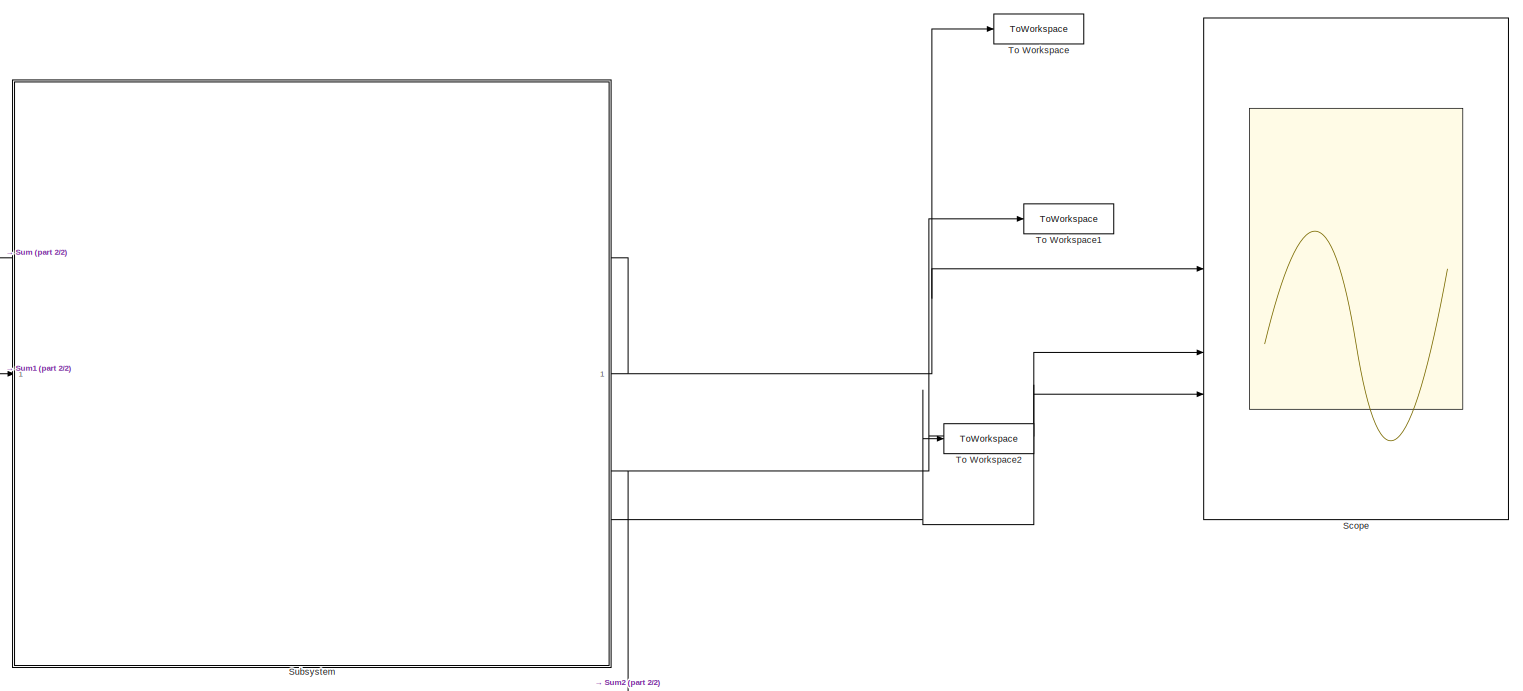
[diagram: root canvas - part 1/2, right side, full height]
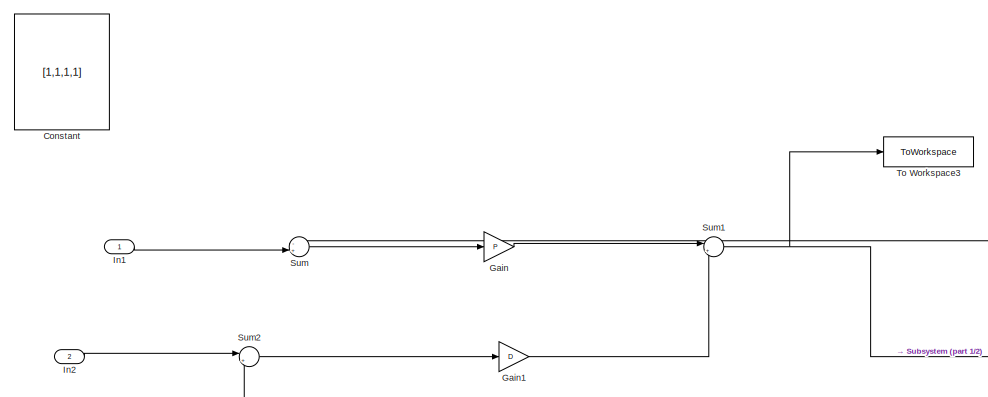
[diagram: root canvas - part 2/2, top left region]
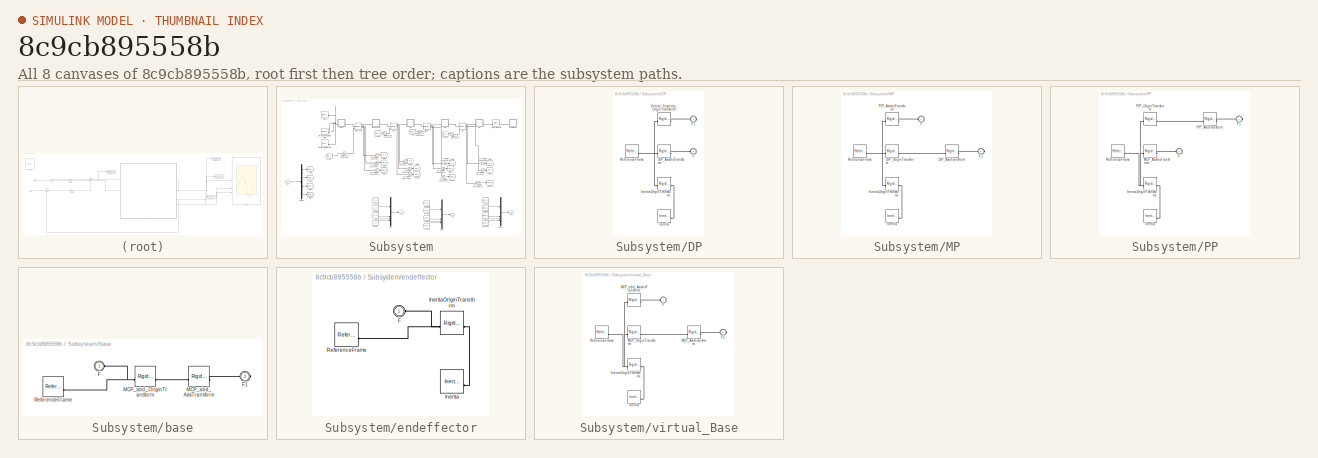
[diagram: thumbnail index - all 8 canvases of the model, root first then tree order]
MODEL slx_8c9cb895558b
KIND model
CONFIG AbsTol = auto
CONFIG EnableMultiTasking = off
CONFIG FixedStep = 1e-3
CONFIG MaxStep = auto
CONFIG MinStep = auto
CONFIG RelTol = 1e-3
CONFIG SampleTimeConstraint = Unconstrained
CONFIG SolverName = ode1
CONFIG StartTime = 0.0
CONFIG StopTime = 5
BLOCK [Constant] Constant
  Commented = on
  Value = [1,1,1,1]
BLOCK [Gain] Gain
  Gain = P
BLOCK [Gain] Gain1
  Gain = D
BLOCK [Inport] In1
  OutDataTypeStr = double
  PortDimensions = 4
BLOCK [Inport] In2
  OutDataTypeStr = double
  Port = 2
  PortDimensions = 4
BLOCK [Scope] Scope
  Floating = off
  NumInputPorts = 3
  ScopeSpecificationString = Simulink.scopes.TimeScopeBlockCfg('CurrentConfiguration', extmgr.ConfigurationSet(extmgr.Configuration('Core','General UI',true),extmgr.Configuration('Core','Source UI',true),extmgr.Configuration('Sources','WiredSimulink',true),extmgr.Configuration('Visuals','Time Domain',true,'SerializedDisplays',{struct('MinYLimReal','-2.49904','MaxYLimReal','3.63032','YLabelReal','','MinYLimMag','0.00000','MaxY...<+2829ch>
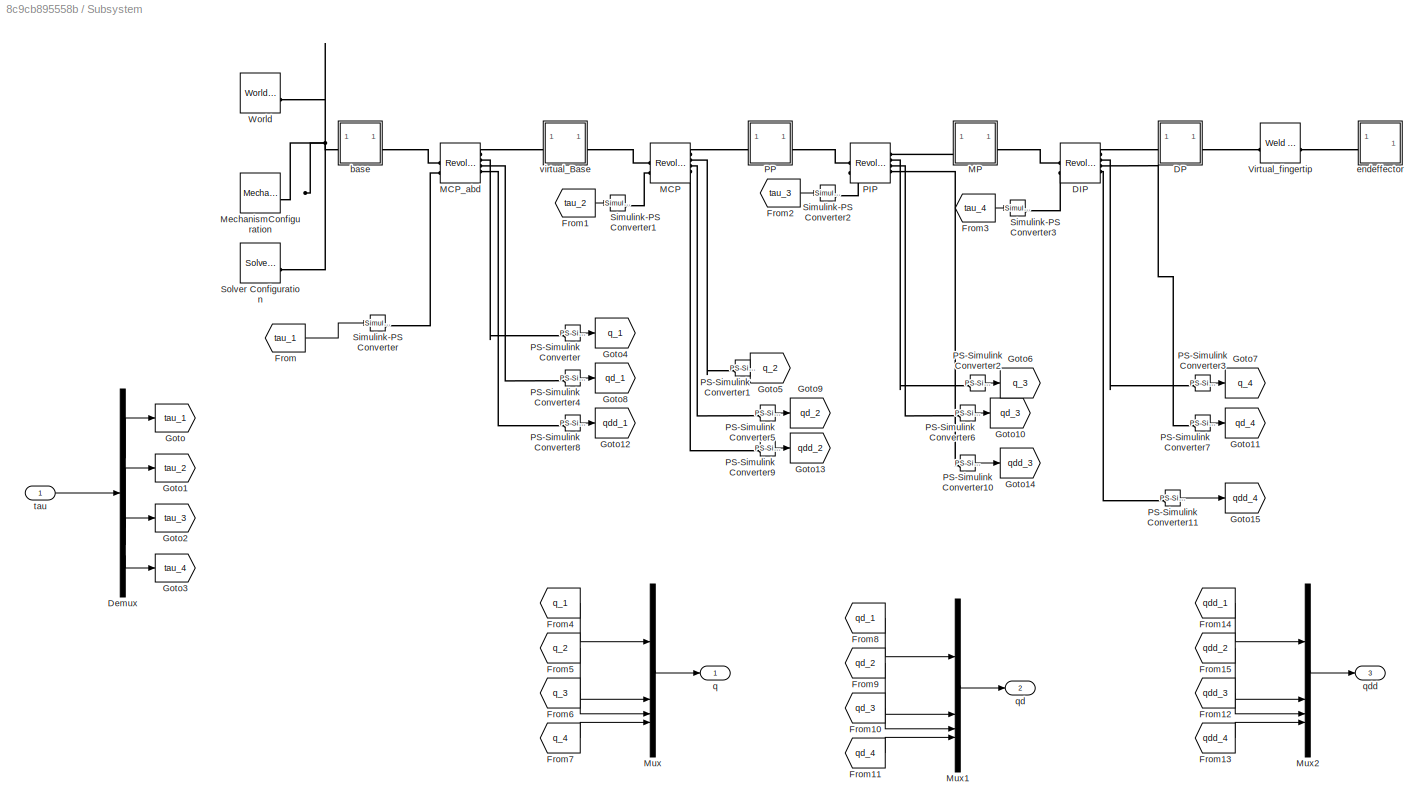
BLOCK [SubSystem] Subsystem
BLOCK [Reference] Subsystem/DIP  REF=sm_lib/Joints/Revolute Joint
  SourceBlock = sm_lib/Joints/Revolute Joint
  SourceType = Revolute Joint
BLOCK [SubSystem] Subsystem/DP
BLOCK [Reference] Subsystem/DP/DIP_AxisInvTransform  REF=sm_lib/Frames and
Transforms/Rigid
Transform
  SourceBlock = sm_lib/Frames and\nTransforms/Rigid\nTransform
  SourceType = Rigid\nTransform
BLOCK [PMIOPort] Subsystem/DP/F
  Side = Left
BLOCK [PMIOPort] Subsystem/DP/F1
  Port = 2
  Side = Right
BLOCK [Reference] Subsystem/DP/Inertia  REF=sm_lib/Body Elements/Inertia
  SourceBlock = sm_lib/Body Elements/Inertia
  SourceType = Inertia
BLOCK [Reference] Subsystem/DP/InertiaOriginTransform  REF=sm_lib/Frames and
Transforms/Rigid
Transform
  SourceBlock = sm_lib/Frames and\nTransforms/Rigid\nTransform
  SourceType = Rigid\nTransform
BLOCK [Reference] Subsystem/DP/ReferenceFrame  REF=sm_lib/Frames and
Transforms/Reference
Frame
  SourceBlock = sm_lib/Frames and\nTransforms/Reference\nFrame
  SourceType = Reference\nFrame
BLOCK [Reference] Subsystem/DP/Virtual_fingertip_OriginTransform  REF=sm_lib/Frames and
Transforms/Rigid
Transform
  SourceBlock = sm_lib/Frames and\nTransforms/Rigid\nTransform
  SourceType = Rigid\nTransform
BLOCK [Demux] Subsystem/Demux
BLOCK [From] Subsystem/From
  GotoTag = tau_1
BLOCK [From] Subsystem/From1
  GotoTag = tau_2
BLOCK [From] Subsystem/From10
  GotoTag = qd_3
BLOCK [From] Subsystem/From11
  GotoTag = qd_4
BLOCK [From] Subsystem/From12
  GotoTag = qdd_3
BLOCK [From] Subsystem/From13
  GotoTag = qdd_4
BLOCK [From] Subsystem/From14
  GotoTag = qdd_1
BLOCK [From] Subsystem/From15
  GotoTag = qdd_2
BLOCK [From] Subsystem/From2
  GotoTag = tau_3
BLOCK [From] Subsystem/From3
  GotoTag = tau_4
BLOCK [From] Subsystem/From4
  GotoTag = q_1
BLOCK [From] Subsystem/From5
  GotoTag = q_2
BLOCK [From] Subsystem/From6
  GotoTag = q_3
BLOCK [From] Subsystem/From7
  GotoTag = q_4
BLOCK [From] Subsystem/From8
  GotoTag = qd_1
BLOCK [From] Subsystem/From9
  GotoTag = qd_2
BLOCK [Goto] Subsystem/Goto
  GotoTag = tau_1
BLOCK [Goto] Subsystem/Goto1
  GotoTag = tau_2
BLOCK [Goto] Subsystem/Goto10
  GotoTag = qd_3
BLOCK [Goto] Subsystem/Goto11
  GotoTag = qd_4
BLOCK [Goto] Subsystem/Goto12
  GotoTag = qdd_1
BLOCK [Goto] Subsystem/Goto13
  GotoTag = qdd_2
BLOCK [Goto] Subsystem/Goto14
  GotoTag = qdd_3
BLOCK [Goto] Subsystem/Goto15
  GotoTag = qdd_4
BLOCK [Goto] Subsystem/Goto2
  GotoTag = tau_3
BLOCK [Goto] Subsystem/Goto3
  GotoTag = tau_4
BLOCK [Goto] Subsystem/Goto4
  GotoTag = q_1
BLOCK [Goto] Subsystem/Goto5
  GotoTag = q_2
BLOCK [Goto] Subsystem/Goto6
  GotoTag = q_3
BLOCK [Goto] Subsystem/Goto7
  GotoTag = q_4
BLOCK [Goto] Subsystem/Goto8
  GotoTag = qd_1
BLOCK [Goto] Subsystem/Goto9
  GotoTag = qd_2
BLOCK [Reference] Subsystem/MCP  REF=sm_lib/Joints/Revolute Joint
  SourceBlock = sm_lib/Joints/Revolute Joint
  SourceType = Revolute Joint
BLOCK [Reference] Subsystem/MCP_abd  REF=sm_lib/Joints/Revolute Joint
  SourceBlock = sm_lib/Joints/Revolute Joint
  SourceType = Revolute Joint
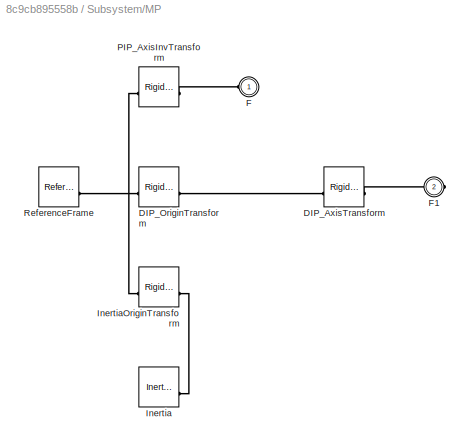
BLOCK [SubSystem] Subsystem/MP
BLOCK [Reference] Subsystem/MP/DIP_AxisTransform  REF=sm_lib/Frames and
Transforms/Rigid
Transform
  SourceBlock = sm_lib/Frames and\nTransforms/Rigid\nTransform
  SourceType = Rigid\nTransform
BLOCK [Reference] Subsystem/MP/DIP_OriginTransform  REF=sm_lib/Frames and
Transforms/Rigid
Transform
  SourceBlock = sm_lib/Frames and\nTransforms/Rigid\nTransform
  SourceType = Rigid\nTransform
BLOCK [PMIOPort] Subsystem/MP/F
  Side = Left
BLOCK [PMIOPort] Subsystem/MP/F1
  Port = 2
  Side = Right
BLOCK [Reference] Subsystem/MP/Inertia  REF=sm_lib/Body Elements/Inertia
  SourceBlock = sm_lib/Body Elements/Inertia
  SourceType = Inertia
BLOCK [Reference] Subsystem/MP/InertiaOriginTransform  REF=sm_lib/Frames and
Transforms/Rigid
Transform
  SourceBlock = sm_lib/Frames and\nTransforms/Rigid\nTransform
  SourceType = Rigid\nTransform
BLOCK [Reference] Subsystem/MP/PIP_AxisInvTransform  REF=sm_lib/Frames and
Transforms/Rigid
Transform
  SourceBlock = sm_lib/Frames and\nTransforms/Rigid\nTransform
  SourceType = Rigid\nTransform
BLOCK [Reference] Subsystem/MP/ReferenceFrame  REF=sm_lib/Frames and
Transforms/Reference
Frame
  SourceBlock = sm_lib/Frames and\nTransforms/Reference\nFrame
  SourceType = Reference\nFrame
BLOCK [Reference] Subsystem/MechanismConfiguration  REF=sm_lib/Utilities/Mechanism
Configuration
  SourceBlock = sm_lib/Utilities/Mechanism\nConfiguration
  SourceType = Mechanism\nConfiguration
BLOCK [Mux] Subsystem/Mux
  DisplayOption = bar
BLOCK [Mux] Subsystem/Mux1
  DisplayOption = bar
BLOCK [Mux] Subsystem/Mux2
  DisplayOption = bar
BLOCK [Reference] Subsystem/PIP  REF=sm_lib/Joints/Revolute Joint
  SourceBlock = sm_lib/Joints/Revolute Joint
  SourceType = Revolute Joint
BLOCK [SubSystem] Subsystem/PP
BLOCK [PMIOPort] Subsystem/PP/F
  Side = Left
BLOCK [PMIOPort] Subsystem/PP/F1
  Port = 2
  Side = Right
BLOCK [Reference] Subsystem/PP/Inertia  REF=sm_lib/Body Elements/Inertia
  SourceBlock = sm_lib/Body Elements/Inertia
  SourceType = Inertia
BLOCK [Reference] Subsystem/PP/InertiaOriginTransform  REF=sm_lib/Frames and
Transforms/Rigid
Transform
  SourceBlock = sm_lib/Frames and\nTransforms/Rigid\nTransform
  SourceType = Rigid\nTransform
BLOCK [Reference] Subsystem/PP/MCP_AxisInvTransform  REF=sm_lib/Frames and
Transforms/Rigid
Transform
  SourceBlock = sm_lib/Frames and\nTransforms/Rigid\nTransform
  SourceType = Rigid\nTransform
BLOCK [Reference] Subsystem/PP/PIP_AxisTransform  REF=sm_lib/Frames and
Transforms/Rigid
Transform
  SourceBlock = sm_lib/Frames and\nTransforms/Rigid\nTransform
  SourceType = Rigid\nTransform
BLOCK [Reference] Subsystem/PP/PIP_OriginTransform  REF=sm_lib/Frames and
Transforms/Rigid
Transform
  SourceBlock = sm_lib/Frames and\nTransforms/Rigid\nTransform
  SourceType = Rigid\nTransform
BLOCK [Reference] Subsystem/PP/ReferenceFrame  REF=sm_lib/Frames and
Transforms/Reference
Frame
  SourceBlock = sm_lib/Frames and\nTransforms/Reference\nFrame
  SourceType = Reference\nFrame
BLOCK [Reference] Subsystem/PS-Simulink Converter  REF=nesl_utility/PS-Simulink
Converter
  SourceBlock = nesl_utility/PS-Simulink\nConverter
  SourceType = PS-Simulink\nConverter
BLOCK [Reference] Subsystem/PS-Simulink Converter1  REF=nesl_utility/PS-Simulink
Converter
  SourceBlock = nesl_utility/PS-Simulink\nConverter
  SourceType = PS-Simulink\nConverter
BLOCK [Reference] Subsystem/PS-Simulink Converter10  REF=nesl_utility/PS-Simulink
Converter
  SourceBlock = nesl_utility/PS-Simulink\nConverter
  SourceType = PS-Simulink\nConverter
BLOCK [Reference] Subsystem/PS-Simulink Converter11  REF=nesl_utility/PS-Simulink
Converter
  SourceBlock = nesl_utility/PS-Simulink\nConverter
  SourceType = PS-Simulink\nConverter
BLOCK [Reference] Subsystem/PS-Simulink Converter2  REF=nesl_utility/PS-Simulink
Converter
  SourceBlock = nesl_utility/PS-Simulink\nConverter
  SourceType = PS-Simulink\nConverter
BLOCK [Reference] Subsystem/PS-Simulink Converter3  REF=nesl_utility/PS-Simulink
Converter
  SourceBlock = nesl_utility/PS-Simulink\nConverter
  SourceType = PS-Simulink\nConverter
BLOCK [Reference] Subsystem/PS-Simulink Converter4  REF=nesl_utility/PS-Simulink
Converter
  SourceBlock = nesl_utility/PS-Simulink\nConverter
  SourceType = PS-Simulink\nConverter
BLOCK [Reference] Subsystem/PS-Simulink Converter5  REF=nesl_utility/PS-Simulink
Converter
  SourceBlock = nesl_utility/PS-Simulink\nConverter
  SourceType = PS-Simulink\nConverter
BLOCK [Reference] Subsystem/PS-Simulink Converter6  REF=nesl_utility/PS-Simulink
Converter
  SourceBlock = nesl_utility/PS-Simulink\nConverter
  SourceType = PS-Simulink\nConverter
BLOCK [Reference] Subsystem/PS-Simulink Converter7  REF=nesl_utility/PS-Simulink
Converter
  SourceBlock = nesl_utility/PS-Simulink\nConverter
  SourceType = PS-Simulink\nConverter
BLOCK [Reference] Subsystem/PS-Simulink Converter8  REF=nesl_utility/PS-Simulink
Converter
  SourceBlock = nesl_utility/PS-Simulink\nConverter
  SourceType = PS-Simulink\nConverter
BLOCK [Reference] Subsystem/PS-Simulink Converter9  REF=nesl_utility/PS-Simulink
Converter
  SourceBlock = nesl_utility/PS-Simulink\nConverter
  SourceType = PS-Simulink\nConverter
BLOCK [Reference] Subsystem/Simulink-PS Converter  REF=nesl_utility/Simulink-PS
Converter
  SourceBlock = nesl_utility/Simulink-PS\nConverter
  SourceType = Simulink-PS\nConverter
BLOCK [Reference] Subsystem/Simulink-PS Converter1  REF=nesl_utility/Simulink-PS
Converter
  SourceBlock = nesl_utility/Simulink-PS\nConverter
  SourceType = Simulink-PS\nConverter
BLOCK [Reference] Subsystem/Simulink-PS Converter2  REF=nesl_utility/Simulink-PS
Converter
  SourceBlock = nesl_utility/Simulink-PS\nConverter
  SourceType = Simulink-PS\nConverter
BLOCK [Reference] Subsystem/Simulink-PS Converter3  REF=nesl_utility/Simulink-PS
Converter
  SourceBlock = nesl_utility/Simulink-PS\nConverter
  SourceType = Simulink-PS\nConverter
BLOCK [Reference] Subsystem/Solver Configuration  REF=nesl_utility/Solver
Configuration
  SourceBlock = nesl_utility/Solver\nConfiguration
  SourceType = Solver\nConfiguration
BLOCK [Reference] Subsystem/Virtual_fingertip  REF=sm_lib/Joints/Weld Joint
  SourceBlock = sm_lib/Joints/Weld Joint
  SourceType = Weld Joint
BLOCK [Reference] Subsystem/World  REF=sm_lib/Frames and
Transforms/World Frame
  SourceBlock = sm_lib/Frames and\nTransforms/World Frame
  SourceType = World Frame
BLOCK [SubSystem] Subsystem/base
BLOCK [PMIOPort] Subsystem/base/F
  Side = Left
BLOCK [PMIOPort] Subsystem/base/F1
  Port = 2
  Side = Right
BLOCK [Reference] Subsystem/base/MCP_abd_AxisTransform  REF=sm_lib/Frames and
Transforms/Rigid
Transform
  SourceBlock = sm_lib/Frames and\nTransforms/Rigid\nTransform
  SourceType = Rigid\nTransform
BLOCK [Reference] Subsystem/base/MCP_abd_OriginTransform  REF=sm_lib/Frames and
Transforms/Rigid
Transform
  SourceBlock = sm_lib/Frames and\nTransforms/Rigid\nTransform
  SourceType = Rigid\nTransform
BLOCK [Reference] Subsystem/base/ReferenceFrame  REF=sm_lib/Frames and
Transforms/Reference
Frame
  SourceBlock = sm_lib/Frames and\nTransforms/Reference\nFrame
  SourceType = Reference\nFrame
BLOCK [SubSystem] Subsystem/endeffector
BLOCK [PMIOPort] Subsystem/endeffector/F
  Side = Left
BLOCK [Reference] Subsystem/endeffector/Inertia  REF=sm_lib/Body Elements/Inertia
  SourceBlock = sm_lib/Body Elements/Inertia
  SourceType = Inertia
BLOCK [Reference] Subsystem/endeffector/InertiaOriginTransform  REF=sm_lib/Frames and
Transforms/Rigid
Transform
  SourceBlock = sm_lib/Frames and\nTransforms/Rigid\nTransform
  SourceType = Rigid\nTransform
BLOCK [Reference] Subsystem/endeffector/ReferenceFrame  REF=sm_lib/Frames and
Transforms/Reference
Frame
  SourceBlock = sm_lib/Frames and\nTransforms/Reference\nFrame
  SourceType = Reference\nFrame
BLOCK [Outport] Subsystem/q
BLOCK [Outport] Subsystem/qd
  Port = 2
BLOCK [Outport] Subsystem/qdd
  Port = 3
BLOCK [Inport] Subsystem/tau
BLOCK [SubSystem] Subsystem/virtual_Base
BLOCK [PMIOPort] Subsystem/virtual_Base/F
  Side = Left
BLOCK [PMIOPort] Subsystem/virtual_Base/F1
  Port = 2
  Side = Right
BLOCK [Reference] Subsystem/virtual_Base/Inertia  REF=sm_lib/Body Elements/Inertia
  SourceBlock = sm_lib/Body Elements/Inertia
  SourceType = Inertia
BLOCK [Reference] Subsystem/virtual_Base/InertiaOriginTransform  REF=sm_lib/Frames and
Transforms/Rigid
Transform
  SourceBlock = sm_lib/Frames and\nTransforms/Rigid\nTransform
  SourceType = Rigid\nTransform
BLOCK [Reference] Subsystem/virtual_Base/MCP_AxisTransform  REF=sm_lib/Frames and
Transforms/Rigid
Transform
  SourceBlock = sm_lib/Frames and\nTransforms/Rigid\nTransform
  SourceType = Rigid\nTransform
BLOCK [Reference] Subsystem/virtual_Base/MCP_OriginTransform  REF=sm_lib/Frames and
Transforms/Rigid
Transform
  SourceBlock = sm_lib/Frames and\nTransforms/Rigid\nTransform
  SourceType = Rigid\nTransform
BLOCK [Reference] Subsystem/virtual_Base/MCP_abd_AxisInvTransform  REF=sm_lib/Frames and
Transforms/Rigid
Transform
  SourceBlock = sm_lib/Frames and\nTransforms/Rigid\nTransform
  SourceType = Rigid\nTransform
BLOCK [Reference] Subsystem/virtual_Base/ReferenceFrame  REF=sm_lib/Frames and
Transforms/Reference
Frame
  SourceBlock = sm_lib/Frames and\nTransforms/Reference\nFrame
  SourceType = Reference\nFrame
BLOCK [Sum] Sum
  Inputs = -+|
BLOCK [Sum] Sum1
  Inputs = |++
BLOCK [Sum] Sum2
  Inputs = |+-
BLOCK [ToWorkspace] To Workspace
  FixptAsFi = on
  MaxDataPoints = inf
  SampleTime = 1e-3
  SaveFormat = Structure With Time
  VariableName = q_out
BLOCK [ToWorkspace] To Workspace1
  FixptAsFi = on
  MaxDataPoints = inf
  SampleTime = 1e-3
  SaveFormat = Structure With Time
  VariableName = qd_out
BLOCK [ToWorkspace] To Workspace2
  FixptAsFi = on
  MaxDataPoints = inf
  SampleTime = 1e-3
  SaveFormat = Structure With Time
  VariableName = qdd_out
BLOCK [ToWorkspace] To Workspace3
  FixptAsFi = on
  MaxDataPoints = inf
  SampleTime = 1e-3
  SaveFormat = Structure With Time
  VariableName = tau
LINE Gain1:1 -> Sum1:2
LINE Gain:1 -> Sum1:1
LINE In1:1 -> Sum:2
LINE In2:1 -> Sum2:1
LINE Subsystem/Demux:1 -> Subsystem/Goto:1
LINE Subsystem/Demux:2 -> Subsystem/Goto1:1
LINE Subsystem/Demux:3 -> Subsystem/Goto2:1
LINE Subsystem/Demux:4 -> Subsystem/Goto3:1
LINE Subsystem/From10:1 -> Subsystem/Mux1:3
LINE Subsystem/From11:1 -> Subsystem/Mux1:4
LINE Subsystem/From12:1 -> Subsystem/Mux2:3
LINE Subsystem/From13:1 -> Subsystem/Mux2:4
LINE Subsystem/From14:1 -> Subsystem/Mux2:1
LINE Subsystem/From15:1 -> Subsystem/Mux2:2
LINE Subsystem/From1:1 -> Subsystem/Simulink-PS Converter1:1
LINE Subsystem/From2:1 -> Subsystem/Simulink-PS Converter2:1
LINE Subsystem/From3:1 -> Subsystem/Simulink-PS Converter3:1
LINE Subsystem/From4:1 -> Subsystem/Mux:1
LINE Subsystem/From5:1 -> Subsystem/Mux:2
LINE Subsystem/From6:1 -> Subsystem/Mux:3
LINE Subsystem/From7:1 -> Subsystem/Mux:4
LINE Subsystem/From8:1 -> Subsystem/Mux1:1
LINE Subsystem/From9:1 -> Subsystem/Mux1:2
LINE Subsystem/From:1 -> Subsystem/Simulink-PS Converter:1
LINE Subsystem/Mux1:1 -> Subsystem/qd:1
LINE Subsystem/Mux2:1 -> Subsystem/qdd:1
LINE Subsystem/Mux:1 -> Subsystem/q:1
LINE Subsystem/PS-Simulink Converter10:1 -> Subsystem/Goto14:1
LINE Subsystem/PS-Simulink Converter11:1 -> Subsystem/Goto15:1
LINE Subsystem/PS-Simulink Converter1:1 -> Subsystem/Goto5:1
LINE Subsystem/PS-Simulink Converter2:1 -> Subsystem/Goto6:1
LINE Subsystem/PS-Simulink Converter3:1 -> Subsystem/Goto7:1
LINE Subsystem/PS-Simulink Converter4:1 -> Subsystem/Goto8:1
LINE Subsystem/PS-Simulink Converter5:1 -> Subsystem/Goto9:1
LINE Subsystem/PS-Simulink Converter6:1 -> Subsystem/Goto10:1
LINE Subsystem/PS-Simulink Converter7:1 -> Subsystem/Goto11:1
LINE Subsystem/PS-Simulink Converter8:1 -> Subsystem/Goto12:1
LINE Subsystem/PS-Simulink Converter9:1 -> Subsystem/Goto13:1
LINE Subsystem/PS-Simulink Converter:1 -> Subsystem/Goto4:1
LINE Subsystem/tau:1 -> Subsystem/Demux:1
NET Subsystem:1 -> Scope:1, Sum:1, To Workspace:1
NET Subsystem:2 -> Scope:2, Sum2:2, To Workspace1:1
NET Subsystem:3 -> Scope:3, To Workspace2:1
NET Sum1:1 -> Subsystem:1, To Workspace3:1
LINE Sum2:1 -> Gain1:1
LINE Sum:1 -> Gain:1
PLINE Subsystem/DIP:LConn1 -- Subsystem/MP:RConn1
PLINE Subsystem/DIP:LConn2 -- Subsystem/Simulink-PS Converter3:RConn1
PLINE Subsystem/DIP:RConn1 -- Subsystem/DP:LConn1
PLINE Subsystem/DIP:RConn2 -- Subsystem/PS-Simulink Converter3:LConn1
PLINE Subsystem/DIP:RConn3 -- Subsystem/PS-Simulink Converter7:LConn1
PLINE Subsystem/DIP:RConn4 -- Subsystem/PS-Simulink Converter11:LConn1
PNET net1: Subsystem/DP/DIP_AxisInvTransform:LConn1 -- Subsystem/DP/InertiaOriginTransform:LConn1 -- Subsystem/DP/ReferenceFrame:RConn1 -- Subsystem/DP/Virtual_fingertip_OriginTransform:LConn1
PLINE Subsystem/DP/DIP_AxisInvTransform:RConn1 -- Subsystem/DP/F:RConn1
PLINE Subsystem/DP/F1:RConn1 -- Subsystem/DP/Virtual_fingertip_OriginTransform:RConn1
PLINE Subsystem/DP/Inertia:RConn1 -- Subsystem/DP/InertiaOriginTransform:RConn1
PLINE Subsystem/DP:RConn1 -- Subsystem/Virtual_fingertip:LConn1
PLINE Subsystem/MCP:LConn1 -- Subsystem/virtual_Base:RConn1
PLINE Subsystem/MCP:LConn2 -- Subsystem/Simulink-PS Converter1:RConn1
PLINE Subsystem/MCP:RConn1 -- Subsystem/PP:LConn1
PLINE Subsystem/MCP:RConn2 -- Subsystem/PS-Simulink Converter1:LConn1
PLINE Subsystem/MCP:RConn3 -- Subsystem/PS-Simulink Converter5:LConn1
PLINE Subsystem/MCP:RConn4 -- Subsystem/PS-Simulink Converter9:LConn1
PLINE Subsystem/MCP_abd:LConn1 -- Subsystem/base:RConn1
PLINE Subsystem/MCP_abd:LConn2 -- Subsystem/Simulink-PS Converter:RConn1
PLINE Subsystem/MCP_abd:RConn1 -- Subsystem/virtual_Base:LConn1
PLINE Subsystem/MCP_abd:RConn2 -- Subsystem/PS-Simulink Converter:LConn1
PLINE Subsystem/MCP_abd:RConn3 -- Subsystem/PS-Simulink Converter4:LConn1
PLINE Subsystem/MCP_abd:RConn4 -- Subsystem/PS-Simulink Converter8:LConn1
PLINE Subsystem/MP/DIP_AxisTransform:LConn1 -- Subsystem/MP/DIP_OriginTransform:RConn1
PLINE Subsystem/MP/DIP_AxisTransform:RConn1 -- Subsystem/MP/F1:RConn1
PNET net2: Subsystem/MP/DIP_OriginTransform:LConn1 -- Subsystem/MP/InertiaOriginTransform:LConn1 -- Subsystem/MP/PIP_AxisInvTransform:LConn1 -- Subsystem/MP/ReferenceFrame:RConn1
PLINE Subsystem/MP/F:RConn1 -- Subsystem/MP/PIP_AxisInvTransform:RConn1
PLINE Subsystem/MP/Inertia:RConn1 -- Subsystem/MP/InertiaOriginTransform:RConn1
PLINE Subsystem/MP:LConn1 -- Subsystem/PIP:RConn1
PNET net3: Subsystem/MechanismConfiguration:RConn1 -- Subsystem/Solver Configuration:RConn1 -- Subsystem/World:RConn1 -- Subsystem/base:LConn1
PLINE Subsystem/PIP:LConn1 -- Subsystem/PP:RConn1
PLINE Subsystem/PIP:LConn2 -- Subsystem/Simulink-PS Converter2:RConn1
PLINE Subsystem/PIP:RConn2 -- Subsystem/PS-Simulink Converter2:LConn1
PLINE Subsystem/PIP:RConn3 -- Subsystem/PS-Simulink Converter6:LConn1
PLINE Subsystem/PIP:RConn4 -- Subsystem/PS-Simulink Converter10:LConn1
PLINE Subsystem/PP/F1:RConn1 -- Subsystem/PP/PIP_AxisTransform:RConn1
PLINE Subsystem/PP/F:RConn1 -- Subsystem/PP/MCP_AxisInvTransform:RConn1
PLINE Subsystem/PP/Inertia:RConn1 -- Subsystem/PP/InertiaOriginTransform:RConn1
PNET net4: Subsystem/PP/InertiaOriginTransform:LConn1 -- Subsystem/PP/MCP_AxisInvTransform:LConn1 -- Subsystem/PP/PIP_OriginTransform:LConn1 -- Subsystem/PP/ReferenceFrame:RConn1
PLINE Subsystem/PP/PIP_AxisTransform:LConn1 -- Subsystem/PP/PIP_OriginTransform:RConn1
PLINE Subsystem/Virtual_fingertip:RConn1 -- Subsystem/endeffector:LConn1
PLINE Subsystem/base/F1:RConn1 -- Subsystem/base/MCP_abd_AxisTransform:RConn1
PNET net5: Subsystem/base/F:RConn1 -- Subsystem/base/MCP_abd_OriginTransform:LConn1 -- Subsystem/base/ReferenceFrame:RConn1
PLINE Subsystem/base/MCP_abd_AxisTransform:LConn1 -- Subsystem/base/MCP_abd_OriginTransform:RConn1
PNET net6: Subsystem/endeffector/F:RConn1 -- Subsystem/endeffector/InertiaOriginTransform:LConn1 -- Subsystem/endeffector/ReferenceFrame:RConn1
PLINE Subsystem/endeffector/Inertia:RConn1 -- Subsystem/endeffector/InertiaOriginTransform:RConn1
PLINE Subsystem/virtual_Base/F1:RConn1 -- Subsystem/virtual_Base/MCP_AxisTransform:RConn1
PLINE Subsystem/virtual_Base/F:RConn1 -- Subsystem/virtual_Base/MCP_abd_AxisInvTransform:RConn1
PLINE Subsystem/virtual_Base/Inertia:RConn1 -- Subsystem/virtual_Base/InertiaOriginTransform:RConn1
PNET net7: Subsystem/virtual_Base/InertiaOriginTransform:LConn1 -- Subsystem/virtual_Base/MCP_OriginTransform:LConn1 -- Subsystem/virtual_Base/MCP_abd_AxisInvTransform:LConn1 -- Subsystem/virtual_Base/ReferenceFrame:RConn1
PLINE Subsystem/virtual_Base/MCP_AxisTransform:LConn1 -- Subsystem/virtual_Base/MCP_OriginTransform:RConn1
note: NET lines group one-source signal fan-out (src -> all destinations, sorted); 1:1 wires keep LINE; PNET lines group multi-terminal physical nets as a canonical sorted terminal list (undirected conserving connections); 2-terminal nets keep the pairwise PLINE form
